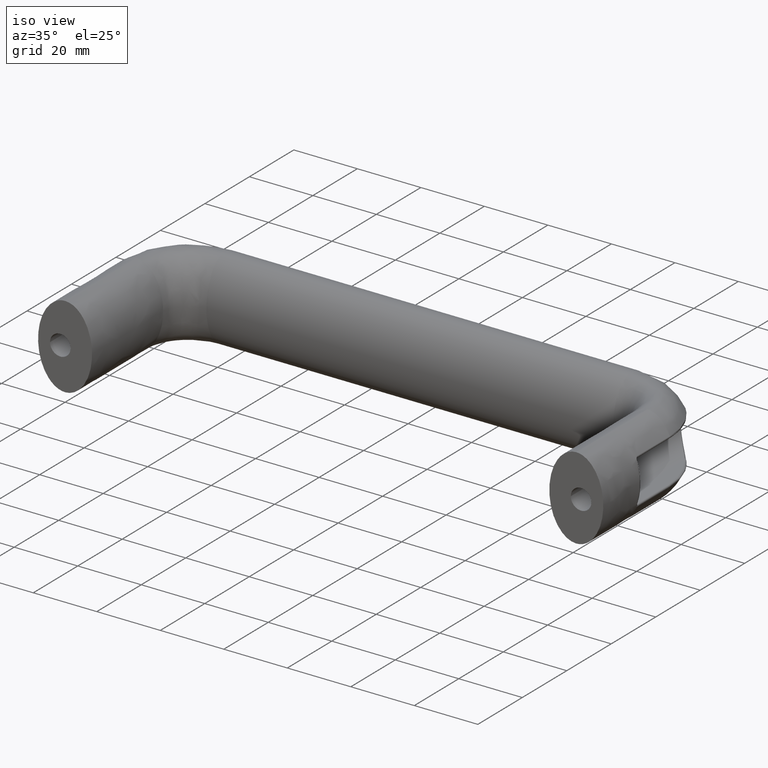
[diagram: clean part render]
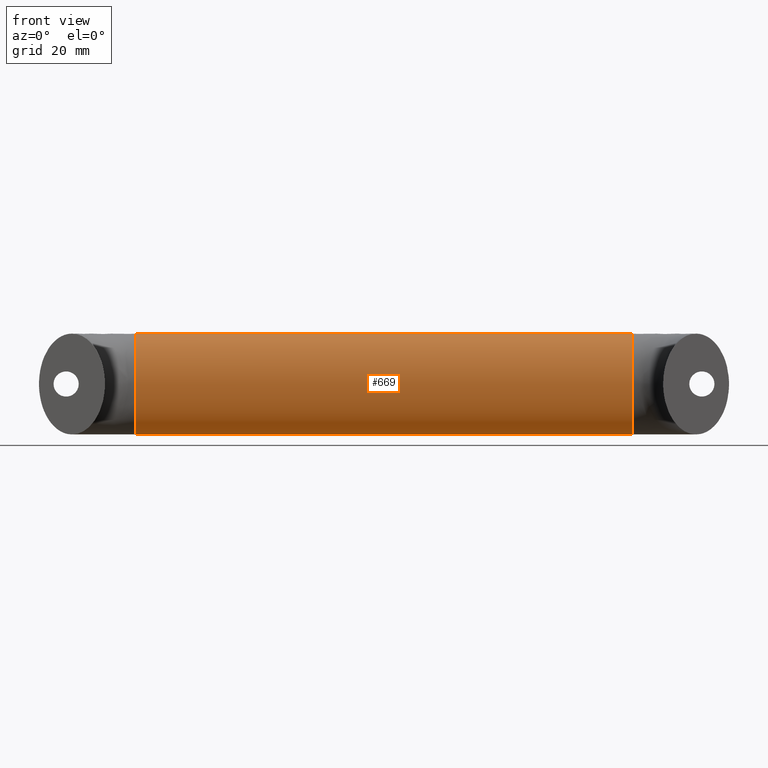
[diagram: tour spotlight — one face highlighted and labeled with its STEP entity id]
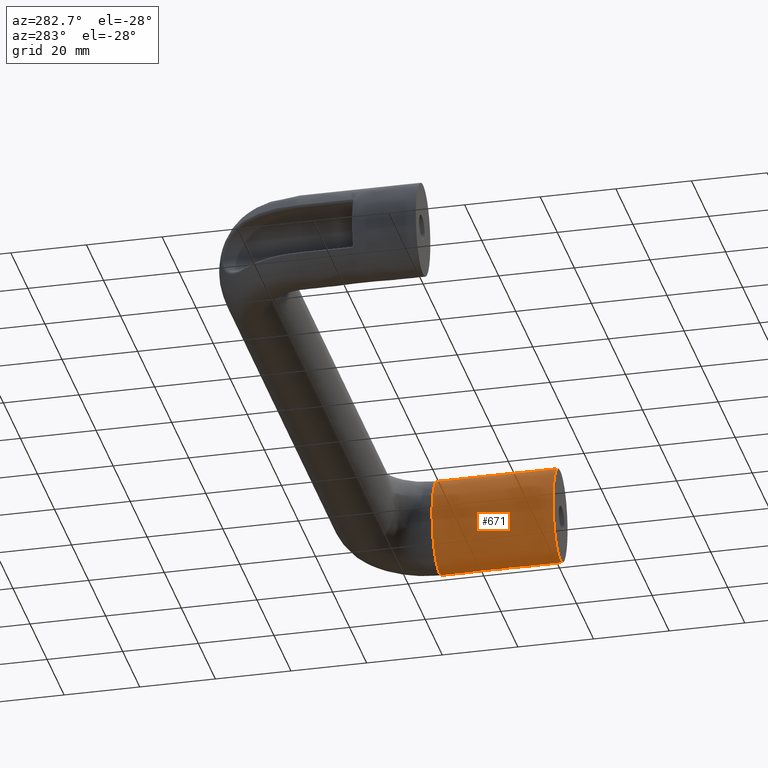
[diagram: tour spotlight — one face highlighted and labeled with its STEP entity id]
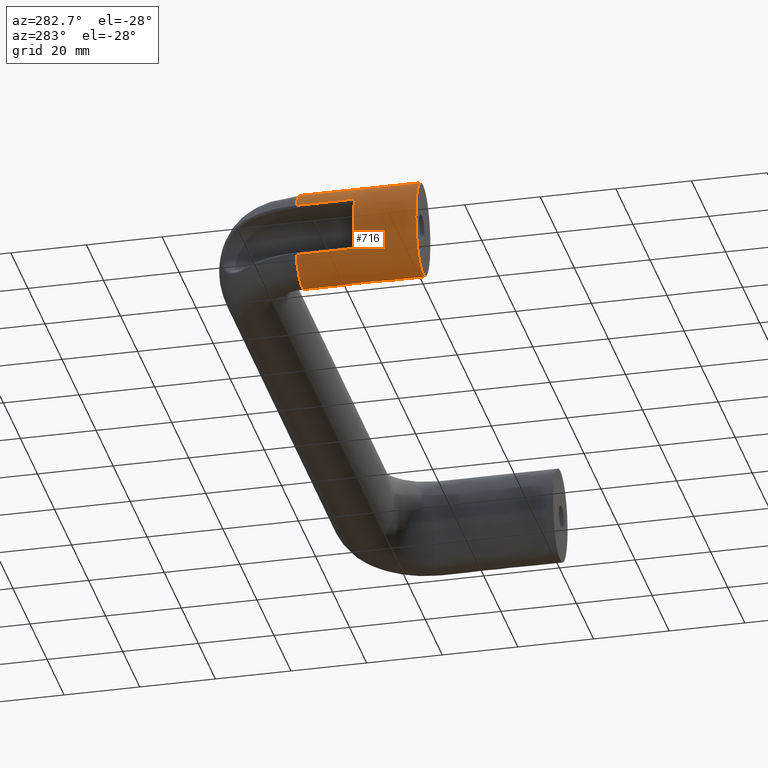
[diagram: tour spotlight — one face highlighted and labeled with its STEP entity id]
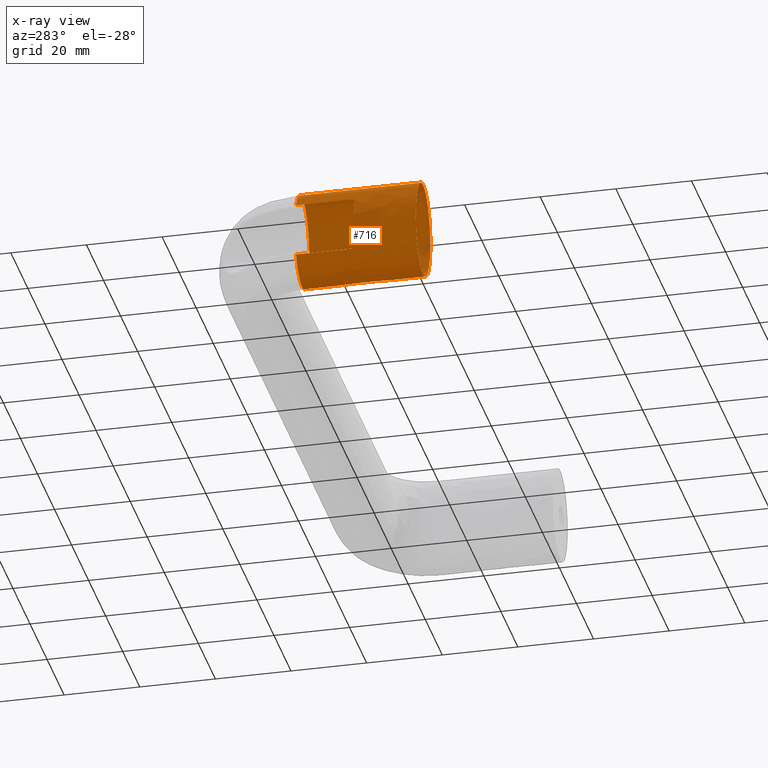
[diagram: x-ray of the same camera — body ghosted, this tour face saturated]
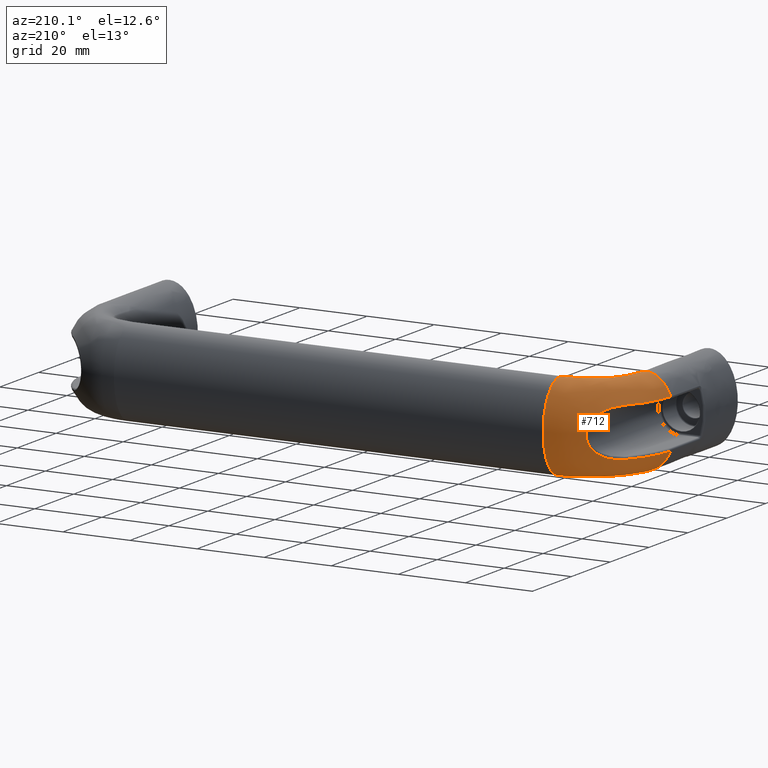
[diagram: tour spotlight — one face highlighted and labeled with its STEP entity id]
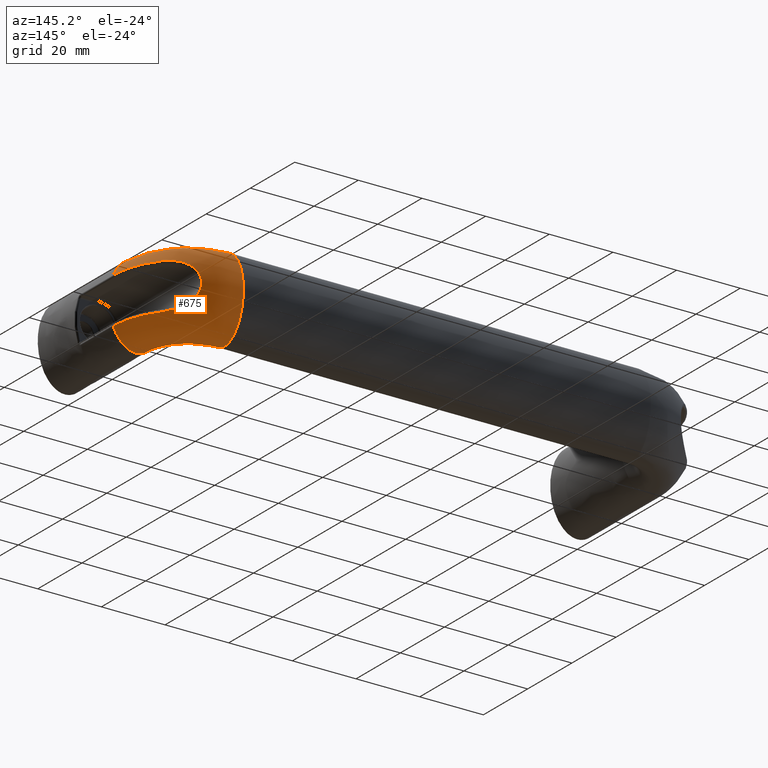
[diagram: tour spotlight — one face highlighted and labeled with its STEP entity id]
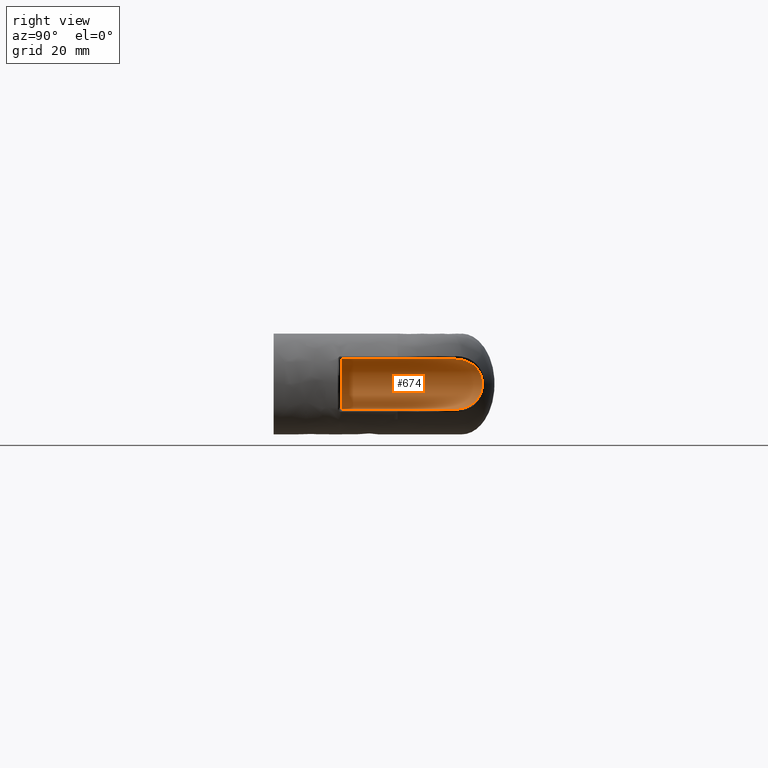
[diagram: tour spotlight — one face highlighted and labeled with its STEP entity id]
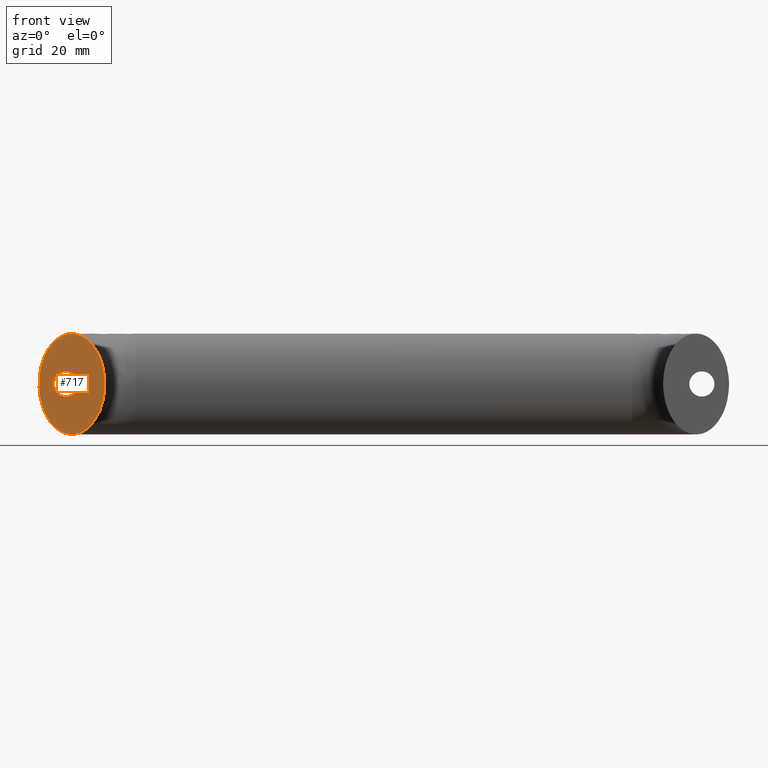
[diagram: tour spotlight — one face highlighted and labeled with its STEP entity id]
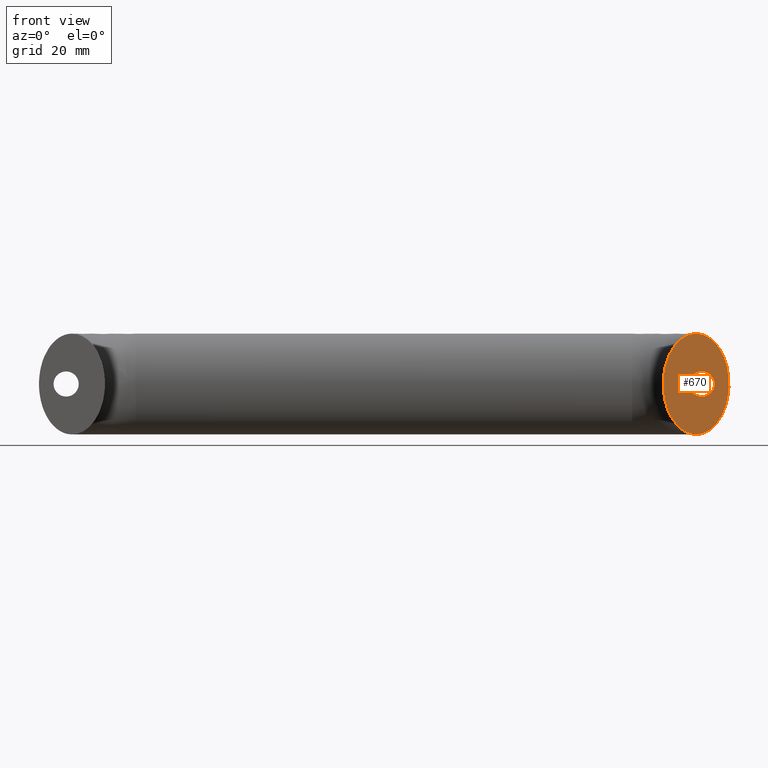
[diagram: tour spotlight — one face highlighted and labeled with its STEP entity id]
A machine part: a face-by-face anatomy tour. The part has 49 B-rep faces; the first image is the clean iso view, then the 8 largest visible faces are spotlighted one at a time (largest first), each with its STEP entity span.

Face 1 — front view, entity #669. In plain terms, the highlighted face is a freeform B-spline surface patch.
Definition (entity closure, byte-faithful):
#162=FACE_OUTER_BOUND('',#211,.T.);
#211=EDGE_LOOP('',(#470,#471,#472,#473));
#276=B_SPLINE_CURVE_WITH_KNOTS('',1,(#1018,#1019),.UNSPECIFIED.,.F.,.F.,
(2,2),(-4.92307692307692,4.92307692307692),.UNSPECIFIED.);
#299=ELLIPSE('',#720,13.,8.5);
#300=ELLIPSE('',#721,13.,8.5);
#311=VERTEX_POINT('',#1015);
#312=VERTEX_POINT('',#1017);
#373=EDGE_CURVE('',#311,#311,#299,.T.);
#374=EDGE_CURVE('',#311,#312,#276,.T.);
#375=EDGE_CURVE('',#312,#312,#300,.T.);
#470=ORIENTED_EDGE('',*,*,#373,.F.);
#471=ORIENTED_EDGE('',*,*,#374,.T.);
#472=ORIENTED_EDGE('',*,*,#375,.T.);
#473=ORIENTED_EDGE('',*,*,#374,.F.);
#664=(
BOUNDED_SURFACE()
B_SPLINE_SURFACE(1,2,((#997,#998,#999,#1000,#1001,#1002,#1003,#1004,#1005),
(#1006,#1007,#1008,#1009,#1010,#1011,#1012,#1013,#1014)),.UNSPECIFIED.,
 .F.,.T.,.F.)
B_SPLINE_SURFACE_WITH_KNOTS((2,2),(3,2,2,2,3),(-4.92307692307692,4.92307692307692),
(-3.14159265358979,-1.5707963267949,0.,1.5707963267949,3.14159265358979),
 .UNSPECIFIED.)
GEOMETRIC_REPRESENTATION_ITEM()
RATIONAL_B_SPLINE_SURFACE(((1.,0.707106781186548,1.,0.707106781186548,1.,
0.707106781186548,1.,0.707106781186548,1.),(1.,0.707106781186548,1.,0.707106781186548,
1.,0.707106781186548,1.,0.707106781186548,1.)))
REPRESENTATION_ITEM('')
SURFACE()
);
#669=ADVANCED_FACE('',(#162),#664,.F.);
#720=AXIS2_PLACEMENT_3D('',#1016,#806,#807);
#721=AXIS2_PLACEMENT_3D('',#1020,#808,#809);
#806=DIRECTION('center_axis',(1.,6.12323399573677E-17,0.));
#807=DIRECTION('ref_axis',(0.,0.,-1.));
#808=DIRECTION('center_axis',(1.,6.12323399573677E-17,0.));
#809=DIRECTION('ref_axis',(0.,0.,-1.));
#997=CARTESIAN_POINT('Ctrl Pts',(16.5,48.5,-13.));
#998=CARTESIAN_POINT('Ctrl Pts',(16.5,57.,-13.));
#999=CARTESIAN_POINT('Ctrl Pts',(16.5,57.,0.));
#1000=CARTESIAN_POINT('Ctrl Pts',(16.5,57.,13.));
#1001=CARTESIAN_POINT('Ctrl Pts',(16.5,48.5,13.));
#1002=CARTESIAN_POINT('Ctrl Pts',(16.5,40.,13.));
#1003=CARTESIAN_POINT('Ctrl Pts',(16.5,40.,0.));
#1004=CARTESIAN_POINT('Ctrl Pts',(16.5,40.,-13.));
#1005=CARTESIAN_POINT('Ctrl Pts',(16.5,48.5,-13.));
#1006=CARTESIAN_POINT('Ctrl Pts',(144.5,48.5,-13.));
#1007=CARTESIAN_POINT('Ctrl Pts',(144.5,57.,-13.));
#1008=CARTESIAN_POINT('Ctrl Pts',(144.5,57.,0.));
#1009=CARTESIAN_POINT('Ctrl Pts',(144.5,57.,13.));
#1010=CARTESIAN_POINT('Ctrl Pts',(144.5,48.5,13.));
#1011=CARTESIAN_POINT('Ctrl Pts',(144.5,40.,13.));
#1012=CARTESIAN_POINT('Ctrl Pts',(144.5,40.,0.));
#1013=CARTESIAN_POINT('Ctrl Pts',(144.5,40.,-13.));
#1014=CARTESIAN_POINT('Ctrl Pts',(144.5,48.5,-13.));
#1015=CARTESIAN_POINT('',(144.5,48.5,-13.));
#1016=CARTESIAN_POINT('Origin',(144.5,48.5,0.));
#1017=CARTESIAN_POINT('',(16.5,48.5,-13.));
#1018=CARTESIAN_POINT('Ctrl Pts',(144.5,48.5,-13.));
#1019=CARTESIAN_POINT('Ctrl Pts',(16.5,48.5,-13.));
#1020=CARTESIAN_POINT('Origin',(16.5,48.5,0.));

Face 2 — auxiliary view, entity #671. In plain terms, the highlighted face is a freeform B-spline surface patch.
Definition (entity closure, byte-faithful):
#52=LINE('',#1045,#74);
#53=LINE('',#1051,#75);
#54=LINE('',#1069,#76);
#74=VECTOR('',#816,32.);
#75=VECTOR('',#821,14.5);
#76=VECTOR('',#824,14.5);
#164=FACE_OUTER_BOUND('',#214,.T.);
#214=EDGE_LOOP('',(#476,#477,#478,#479,#480,#481,#482,#483,#484,#485,#486));
#277=B_SPLINE_CURVE_WITH_KNOTS('',3,(#1053,#1054,#1055,#1056,#1057,#1058),
 .UNSPECIFIED.,.F.,.F.,(4,1,1,4),(-0.162801566641001,-0.116286833315001,
-0.0697720999890006,0.),.UNSPECIFIED.);
#278=B_SPLINE_CURVE_WITH_KNOTS('',3,(#1062,#1063,#1064,#1065,#1066,#1067),
 .UNSPECIFIED.,.F.,.F.,(4,1,1,4),(-0.162803649215568,-0.116288320868263,
-0.0930306566946101,0.),.UNSPECIFIED.);
#301=ELLIPSE('',#723,13.,8.5);
#302=ELLIPSE('',#725,13.,8.5);
#303=ELLIPSE('',#726,13.,8.5);
#304=ELLIPSE('',#727,12.9999999999906,8.4999999999867);
#305=ELLIPSE('',#728,13.,8.5);
#313=VERTEX_POINT('',#1022);
#315=VERTEX_POINT('',#1044);
#316=VERTEX_POINT('',#1046);
#317=VERTEX_POINT('',#1048);
#318=VERTEX_POINT('',#1050);
#319=VERTEX_POINT('',#1052);
#320=VERTEX_POINT('',#1059);
#321=VERTEX_POINT('',#1061);
#322=VERTEX_POINT('',#1068);
#376=EDGE_CURVE('',#313,#313,#301,.T.);
#378=EDGE_CURVE('',#313,#315,#52,.T.);
#379=EDGE_CURVE('',#315,#316,#302,.T.);
#380=EDGE_CURVE('',#316,#317,#303,.T.);
#381=EDGE_CURVE('',#318,#317,#53,.T.);
#382=EDGE_CURVE('',#319,#318,#277,.T.);
#383=EDGE_CURVE('',#320,#319,#304,.T.);
#384=EDGE_CURVE('',#321,#320,#278,.T.);
#385=EDGE_CURVE('',#322,#321,#54,.T.);
#386=EDGE_CURVE('',#322,#315,#305,.T.);
#476=ORIENTED_EDGE('',*,*,#376,.F.);
#477=ORIENTED_EDGE('',*,*,#378,.T.);
#478=ORIENTED_EDGE('',*,*,#379,.T.);
#479=ORIENTED_EDGE('',*,*,#380,.T.);
#480=ORIENTED_EDGE('',*,*,#381,.F.);
#481=ORIENTED_EDGE('',*,*,#382,.F.);
#482=ORIENTED_EDGE('',*,*,#383,.F.);
#483=ORIENTED_EDGE('',*,*,#384,.F.);
#484=ORIENTED_EDGE('',*,*,#385,.F.);
#485=ORIENTED_EDGE('',*,*,#386,.T.);
#486=ORIENTED_EDGE('',*,*,#378,.F.);
#665=(
BOUNDED_SURFACE()
B_SPLINE_SURFACE(2,1,((#1026,#1027),(#1028,#1029),(#1030,#1031),(#1032,
#1033),(#1034,#1035),(#1036,#1037),(#1038,#1039),(#1040,#1041),(#1042,#1043)),
 .UNSPECIFIED.,.T.,.F.,.F.)
B_SPLINE_SURFACE_WITH_KNOTS((3,2,2,2,3),(2,2),(-3.14159265358979,-1.5707963267949,
0.,1.5707963267949,3.14159265358979),(0.,3.84),.UNSPECIFIED.)
GEOMETRIC_REPRESENTATION_ITEM()
RATIONAL_B_SPLINE_SURFACE(((1.,1.),(0.707106781186548,0.707106781186548),
(1.,1.),(0.707106781186548,0.707106781186548),(1.,1.),(0.707106781186548,
0.707106781186548),(1.,1.),(0.707106781186548,0.707106781186548),(1.,1.)))
REPRESENTATION_ITEM('')
SURFACE()
);
#671=ADVANCED_FACE('',(#164),#665,.T.);
#723=AXIS2_PLACEMENT_3D('',#1023,#812,#813);
#725=AXIS2_PLACEMENT_3D('',#1047,#817,#818);
#726=AXIS2_PLACEMENT_3D('',#1049,#819,#820);
#727=AXIS2_PLACEMENT_3D('',#1060,#822,#823);
#728=AXIS2_PLACEMENT_3D('',#1070,#825,#826);
#812=DIRECTION('center_axis',(3.44509284839767E-16,-1.,0.));
#813=DIRECTION('ref_axis',(0.,0.,-1.));
#816=DIRECTION('',(0.,1.,0.));
#817=DIRECTION('center_axis',(3.44509284839767E-16,-1.,0.));
#818=DIRECTION('ref_axis',(0.,0.,-1.));
#819=DIRECTION('center_axis',(3.44509284839767E-16,-1.,0.));
#820=DIRECTION('ref_axis',(0.,0.,-1.));
#821=DIRECTION('',(0.,1.,0.));
#822=DIRECTION('center_axis',(5.01756409945165E-18,1.,3.60103510934781E-16));
#823=DIRECTION('ref_axis',(3.70186359788461E-14,-3.60103510934781E-16,1.));
#824=DIRECTION('',(0.,-1.,0.));
#825=DIRECTION('center_axis',(3.44509284839767E-16,-1.,0.));
#826=DIRECTION('ref_axis',(0.,0.,-1.));
#1022=CARTESIAN_POINT('',(161.,-3.10862446895044E-14,13.));
#1023=CARTESIAN_POINT('Origin',(161.,-2.66453525910038E-14,0.));
#1026=CARTESIAN_POINT('Ctrl Pts',(161.,32.,13.));
#1027=CARTESIAN_POINT('Ctrl Pts',(161.,-6.40000000000004,13.));
#1028=CARTESIAN_POINT('Ctrl Pts',(152.5,32.,13.));
#1029=CARTESIAN_POINT('Ctrl Pts',(152.5,-6.40000000000004,13.));
#1030=CARTESIAN_POINT('Ctrl Pts',(152.5,32.,0.));
#1031=CARTESIAN_POINT('Ctrl Pts',(152.5,-6.40000000000004,0.));
#1032=CARTESIAN_POINT('Ctrl Pts',(152.5,32.,-13.));
#1033=CARTESIAN_POINT('Ctrl Pts',(152.5,-6.40000000000004,-13.));
#1034=CARTESIAN_POINT('Ctrl Pts',(161.,32.,-13.));
#1035=CARTESIAN_POINT('Ctrl Pts',(161.,-6.40000000000004,-13.));
#1036=CARTESIAN_POINT('Ctrl Pts',(169.5,32.,-13.));
#1037=CARTESIAN_POINT('Ctrl Pts',(169.5,-6.40000000000004,-13.));
#1038=CARTESIAN_POINT('Ctrl Pts',(169.5,32.,0.));
#1039=CARTESIAN_POINT('Ctrl Pts',(169.5,-6.40000000000004,0.));
#1040=CARTESIAN_POINT('Ctrl Pts',(169.5,32.,13.));
#1041=CARTESIAN_POINT('Ctrl Pts',(169.5,-6.40000000000004,13.));
#1042=CARTESIAN_POINT('Ctrl Pts',(161.,32.,13.));
#1043=CARTESIAN_POINT('Ctrl Pts',(161.,-6.40000000000004,13.));
#1044=CARTESIAN_POINT('',(161.,32.,13.));
#1045=CARTESIAN_POINT('',(161.,32.,13.));
#1046=CARTESIAN_POINT('',(161.,32.,-13.));
#1047=CARTESIAN_POINT('Origin',(161.,32.,0.));
#1048=CARTESIAN_POINT('',(168.077522929227,32.,-7.19939933334356));
#1049=CARTESIAN_POINT('Origin',(161.,32.,0.));
#1050=CARTESIAN_POINT('',(168.07752292926,17.5,-7.19939933326746));
#1051=CARTESIAN_POINT('',(168.07752292926,32.,-7.19939933326746));
#1052=CARTESIAN_POINT('',(168.483005916871,16.5,-6.1661327420626));
#1053=CARTESIAN_POINT('Ctrl Pts',(168.483005916871,16.5,-6.1661327420626));
#1054=CARTESIAN_POINT('Ctrl Pts',(168.429844379381,16.499999999986,-6.31703981823369));
#1055=CARTESIAN_POINT('Ctrl Pts',(168.319248961639,16.5653335364551,-6.61635088092812));
#1056=CARTESIAN_POINT('Ctrl Pts',(168.143213642756,16.8860158474219,-7.05109375168015));
#1057=CARTESIAN_POINT('Ctrl Pts',(168.077522929227,17.2674263333701,-7.19939933334355));
#1058=CARTESIAN_POINT('Ctrl Pts',(168.077522929227,17.5,-7.19939933334355));
#1059=CARTESIAN_POINT('',(168.483005916981,16.5,6.16613274174812));
#1060=CARTESIAN_POINT('Origin',(161.000000000013,16.5,-3.74145159298678E-13));
#1061=CARTESIAN_POINT('',(168.07752292926,17.5,7.19939933326747));
#1062=CARTESIAN_POINT('Ctrl Pts',(168.077522929227,17.5,7.19939933334357));
#1063=CARTESIAN_POINT('Ctrl Pts',(168.077522929227,17.344948905509,7.19939933334357));
#1064=CARTESIAN_POINT('Ctrl Pts',(168.102737875403,17.1140328546982,7.14149874472068));
#1065=CARTESIAN_POINT('Ctrl Pts',(168.230215107386,16.6666937361246,6.84058939700271));
#1066=CARTESIAN_POINT('Ctrl Pts',(168.376681481913,16.4999999998829,6.46795075493022));
#1067=CARTESIAN_POINT('Ctrl Pts',(168.483005916981,16.5,6.1661327417481));
#1068=CARTESIAN_POINT('',(168.07752292926,32.,7.19939933326746));
#1069=CARTESIAN_POINT('',(168.07752292926,32.,7.19939933326747));
#1070=CARTESIAN_POINT('Origin',(161.,32.,0.));

Face 3 — auxiliary view, entity #716. An x-ray twin of the same camera follows (body ghosted, this face saturated) — the face is partly hidden behind the body. In plain terms, the highlighted face is a freeform B-spline surface patch.
Definition (entity closure, byte-faithful):
#65=LINE('',#1593,#87);
#67=LINE('',#1773,#89);
#73=LINE('',#1868,#95);
#87=VECTOR('',#947,14.5);
#89=VECTOR('',#957,14.5);
#95=VECTOR('',#991,32.);
#209=FACE_OUTER_BOUND('',#273,.T.);
#273=EDGE_LOOP('',(#651,#652,#653,#654,#655,#656,#657,#658,#659,#660,#661));
#290=B_SPLINE_CURVE_WITH_KNOTS('',3,(#1529,#1530,#1531,#1532,#1533,#1534),
 .UNSPECIFIED.,.F.,.F.,(4,1,1,4),(-0.162803649215564,-0.11628832086826,
-0.0697729925209562,0.),.UNSPECIFIED.);
#291=B_SPLINE_CURVE_WITH_KNOTS('',3,(#1574,#1575,#1576,#1577,#1578,#1579),
 .UNSPECIFIED.,.F.,.F.,(4,1,1,4),(-0.162801566641,-0.116286833315,-0.0697720999890003,
-3.18998970628953E-16),.UNSPECIFIED.);
#306=ELLIPSE('',#794,13.0000000000002,8.50000000000023);
#307=ELLIPSE('',#795,13.,8.5);
#308=ELLIPSE('',#796,13.,8.5);
#309=ELLIPSE('',#798,13.,8.5);
#310=ELLIPSE('',#802,13.,8.5);
#355=VERTEX_POINT('',#1526);
#356=VERTEX_POINT('',#1528);
#357=VERTEX_POINT('',#1572);
#358=VERTEX_POINT('',#1573);
#361=VERTEX_POINT('',#1591);
#367=VERTEX_POINT('',#1760);
#370=VERTEX_POINT('',#1838);
#371=VERTEX_POINT('',#1840);
#372=VERTEX_POINT('',#1867);
#436=EDGE_CURVE('',#355,#356,#290,.T.);
#438=EDGE_CURVE('',#357,#358,#291,.T.);
#443=EDGE_CURVE('',#361,#355,#65,.T.);
#454=EDGE_CURVE('',#358,#367,#67,.T.);
#461=EDGE_CURVE('',#356,#357,#306,.T.);
#462=EDGE_CURVE('',#367,#370,#307,.T.);
#463=EDGE_CURVE('',#370,#371,#308,.T.);
#465=EDGE_CURVE('',#371,#361,#309,.T.);
#468=EDGE_CURVE('',#370,#372,#73,.T.);
#469=EDGE_CURVE('',#372,#372,#310,.T.);
#651=ORIENTED_EDGE('',*,*,#443,.F.);
#652=ORIENTED_EDGE('',*,*,#465,.F.);
#653=ORIENTED_EDGE('',*,*,#463,.F.);
#654=ORIENTED_EDGE('',*,*,#468,.T.);
#655=ORIENTED_EDGE('',*,*,#469,.T.);
#656=ORIENTED_EDGE('',*,*,#468,.F.);
#657=ORIENTED_EDGE('',*,*,#462,.F.);
#658=ORIENTED_EDGE('',*,*,#454,.F.);
#659=ORIENTED_EDGE('',*,*,#438,.F.);
#660=ORIENTED_EDGE('',*,*,#461,.F.);
#661=ORIENTED_EDGE('',*,*,#436,.F.);
#668=(
BOUNDED_SURFACE()
B_SPLINE_SURFACE(2,1,((#1849,#1850),(#1851,#1852),(#1853,#1854),(#1855,
#1856),(#1857,#1858),(#1859,#1860),(#1861,#1862),(#1863,#1864),(#1865,#1866)),
 .UNSPECIFIED.,.T.,.F.,.F.)
B_SPLINE_SURFACE_WITH_KNOTS((3,2,2,2,3),(2,2),(-3.14159265358979,-1.5707963267949,
0.,1.5707963267949,3.14159265358979),(0.,3.84),.UNSPECIFIED.)
GEOMETRIC_REPRESENTATION_ITEM()
RATIONAL_B_SPLINE_SURFACE(((1.,1.),(0.707106781186548,0.707106781186548),
(1.,1.),(0.707106781186548,0.707106781186548),(1.,1.),(0.707106781186548,
0.707106781186548),(1.,1.),(0.707106781186548,0.707106781186548),(1.,1.)))
REPRESENTATION_ITEM('')
SURFACE()
);
#716=ADVANCED_FACE('',(#209),#668,.T.);
#794=AXIS2_PLACEMENT_3D('',#1810,#973,#974);
#795=AXIS2_PLACEMENT_3D('',#1839,#975,#976);
#796=AXIS2_PLACEMENT_3D('',#1841,#977,#978);
#798=AXIS2_PLACEMENT_3D('',#1843,#981,#982);
#802=AXIS2_PLACEMENT_3D('',#1869,#992,#993);
#947=DIRECTION('',(1.73472347597681E-16,-1.,0.));
#957=DIRECTION('',(-1.73472347597681E-16,1.,0.));
#973=DIRECTION('center_axis',(-1.09416892913838E-15,1.,-1.80051755457583E-16));
#974=DIRECTION('ref_axis',(8.48514185012431E-15,1.80051755457592E-16,1.));
#975=DIRECTION('center_axis',(0.,1.,0.));
#976=DIRECTION('ref_axis',(0.,0.,-1.));
#977=DIRECTION('center_axis',(0.,1.,0.));
#978=DIRECTION('ref_axis',(0.,0.,-1.));
#981=DIRECTION('center_axis',(0.,1.,0.));
#982=DIRECTION('ref_axis',(0.,0.,-1.));
#991=DIRECTION('',(1.73472347597681E-16,-1.,0.));
#992=DIRECTION('center_axis',(0.,1.,0.));
#993=DIRECTION('ref_axis',(0.,0.,-1.));
#1526=CARTESIAN_POINT('',(-7.07752292926031,17.5,-7.19939933326745));
#1528=CARTESIAN_POINT('',(-7.48300591698149,16.5,-6.16613274174809));
#1529=CARTESIAN_POINT('Ctrl Pts',(-7.07752292922721,17.5,-7.19939933334355));
#1530=CARTESIAN_POINT('Ctrl Pts',(-7.07752292922721,17.344948905509,-7.19939933334355));
#1531=CARTESIAN_POINT('Ctrl Pts',(-7.11148146669327,17.0359268522297,-7.12201041401197));
#1532=CARTESIAN_POINT('Ctrl Pts',(-7.26092569259304,16.6224701056188,-6.76616779655953));
#1533=CARTESIAN_POINT('Ctrl Pts',(-7.40326259068004,16.4999999999122,-6.39249625163465));
#1534=CARTESIAN_POINT('Ctrl Pts',(-7.48300591698149,16.5,-6.1661327417481));
#1572=CARTESIAN_POINT('',(-7.48300591687069,16.5,6.16613274206263));
#1573=CARTESIAN_POINT('',(-7.0775229292603,17.5,7.19939933326747));
#1574=CARTESIAN_POINT('Ctrl Pts',(-7.48300591687069,16.5,6.16613274206263));
#1575=CARTESIAN_POINT('Ctrl Pts',(-7.42984437938115,16.499999999986,6.31703981823367));
#1576=CARTESIAN_POINT('Ctrl Pts',(-7.31924589596752,16.5653278864208,6.61635681753747));
#1577=CARTESIAN_POINT('Ctrl Pts',(-7.14320757920169,16.8860053352927,7.05110482725217));
#1578=CARTESIAN_POINT('Ctrl Pts',(-7.0775229292272,17.2674263333701,7.19939933334357));
#1579=CARTESIAN_POINT('Ctrl Pts',(-7.0775229292272,17.5,7.19939933334357));
#1591=CARTESIAN_POINT('',(-7.07752292926031,32.,-7.19939933326745));
#1593=CARTESIAN_POINT('',(-7.07752292926031,-1.2277545177152E-15,-7.19939933326745));
#1760=CARTESIAN_POINT('',(-7.0775229292272,32.,7.19939933334357));
#1773=CARTESIAN_POINT('',(-7.0775229292603,-1.2277545177152E-15,7.19939933326747));
#1810=CARTESIAN_POINT('Origin',(2.23154827949656E-13,16.5,8.88178419700125E-14));
#1838=CARTESIAN_POINT('',(-4.51016534385053E-15,32.,13.));
#1839=CARTESIAN_POINT('Origin',(-5.55111512312578E-15,32.,0.));
#1840=CARTESIAN_POINT('',(-5.55111512312578E-15,32.,-13.));
#1841=CARTESIAN_POINT('Origin',(-5.55111512312578E-15,32.,0.));
#1843=CARTESIAN_POINT('Origin',(-5.55111512312578E-15,32.,0.));
#1849=CARTESIAN_POINT('Ctrl Pts',(2.5578757073893E-31,-1.47451495458029E-15,
13.));
#1850=CARTESIAN_POINT('Ctrl Pts',(-6.66133814775094E-15,38.4,13.));
#1851=CARTESIAN_POINT('Ctrl Pts',(8.5,-4.93038065763132E-31,13.));
#1852=CARTESIAN_POINT('Ctrl Pts',(8.49999999999999,38.4,13.));
#1853=CARTESIAN_POINT('Ctrl Pts',(8.5,0.,0.));
#1854=CARTESIAN_POINT('Ctrl Pts',(8.49999999999999,38.4,0.));
#1855=CARTESIAN_POINT('Ctrl Pts',(8.5,-3.69778549322349E-31,-13.));
#1856=CARTESIAN_POINT('Ctrl Pts',(8.49999999999999,38.4,-13.));
#1857=CARTESIAN_POINT('Ctrl Pts',(2.5578757073893E-31,-1.47451495458029E-15,
-13.));
#1858=CARTESIAN_POINT('Ctrl Pts',(-6.66133814775094E-15,38.4,-13.));
#1859=CARTESIAN_POINT('Ctrl Pts',(-8.5,-2.94902990916057E-15,-13.));
#1860=CARTESIAN_POINT('Ctrl Pts',(-8.50000000000001,38.4,-13.));
#1861=CARTESIAN_POINT('Ctrl Pts',(-8.5,-2.94902990916057E-15,0.));
#1862=CARTESIAN_POINT('Ctrl Pts',(-8.50000000000001,38.4,0.));
#1863=CARTESIAN_POINT('Ctrl Pts',(-8.5,-2.94902990916057E-15,13.));
#1864=CARTESIAN_POINT('Ctrl Pts',(-8.50000000000001,38.4,13.));
#1865=CARTESIAN_POINT('Ctrl Pts',(2.5578757073893E-31,-1.47451495458029E-15,
13.));
#1866=CARTESIAN_POINT('Ctrl Pts',(-6.66133814775094E-15,38.4,13.));
#1867=CARTESIAN_POINT('',(1.04094977927525E-15,-1.47451495458029E-15,13.));
#1868=CARTESIAN_POINT('',(1.04094977927525E-15,1.80576001942165E-31,13.));
#1869=CARTESIAN_POINT('Origin',(0.,0.,0.));

Face 4 — auxiliary view, entity #712. In plain terms, the highlighted face is a freeform B-spline surface patch.
Definition (entity closure, byte-faithful):
#151=CIRCLE('',#797,16.5);
#205=FACE_OUTER_BOUND('',#269,.T.);
#269=EDGE_LOOP('',(#630,#631,#632,#633,#634,#635,#636,#637,#638));
#293=B_SPLINE_CURVE_WITH_KNOTS('',3,(#1628,#1629,#1630,#1631,#1632),
 .UNSPECIFIED.,.F.,.F.,(4,1,4),(-1.56834099361023,-0.896194853491561,-4.12990725370554E-16),
 .UNSPECIFIED.);
#295=B_SPLINE_CURVE_WITH_KNOTS('',3,(#1707,#1708,#1709,#1710,#1711,#1712,
#1713,#1714,#1715,#1716,#1717),.UNSPECIFIED.,.F.,.F.,(4,1,1,1,1,1,1,1,4),
(-2.73713341995059,-2.34611435996047,-1.95509529997035,-1.56407623998023,
-1.36856670998517,-1.17305717999011,-0.782038119999993,-0.391019060009875,
-1.97566462335093E-11),.UNSPECIFIED.);
#297=B_SPLINE_CURVE_WITH_KNOTS('',3,(#1762,#1763,#1764,#1765,#1766),
 .UNSPECIFIED.,.F.,.F.,(4,1,4),(-1.56834099359296,-0.672146140111266,0.),
 .UNSPECIFIED.);
#300=ELLIPSE('',#721,13.,8.5);
#307=ELLIPSE('',#795,13.,8.5);
#308=ELLIPSE('',#796,13.,8.5);
#309=ELLIPSE('',#798,13.,8.5);
#312=VERTEX_POINT('',#1017);
#361=VERTEX_POINT('',#1591);
#363=VERTEX_POINT('',#1626);
#365=VERTEX_POINT('',#1705);
#367=VERTEX_POINT('',#1760);
#370=VERTEX_POINT('',#1838);
#371=VERTEX_POINT('',#1840);
#375=EDGE_CURVE('',#312,#312,#300,.T.);
#446=EDGE_CURVE('',#363,#361,#293,.T.);
#449=EDGE_CURVE('',#365,#363,#295,.T.);
#452=EDGE_CURVE('',#367,#365,#297,.T.);
#462=EDGE_CURVE('',#367,#370,#307,.T.);
#463=EDGE_CURVE('',#370,#371,#308,.T.);
#464=EDGE_CURVE('',#371,#312,#151,.T.);
#465=EDGE_CURVE('',#371,#361,#309,.T.);
#630=ORIENTED_EDGE('',*,*,#446,.F.);
#631=ORIENTED_EDGE('',*,*,#449,.F.);
#632=ORIENTED_EDGE('',*,*,#452,.F.);
#633=ORIENTED_EDGE('',*,*,#462,.T.);
#634=ORIENTED_EDGE('',*,*,#463,.T.);
#635=ORIENTED_EDGE('',*,*,#464,.T.);
#636=ORIENTED_EDGE('',*,*,#375,.F.);
#637=ORIENTED_EDGE('',*,*,#464,.F.);
#638=ORIENTED_EDGE('',*,*,#465,.T.);
#667=(
BOUNDED_SURFACE()
B_SPLINE_SURFACE(2,2,((#1811,#1812,#1813),(#1814,#1815,#1816),(#1817,#1818,
#1819),(#1820,#1821,#1822),(#1823,#1824,#1825),(#1826,#1827,#1828),(#1829,
#1830,#1831),(#1832,#1833,#1834),(#1835,#1836,#1837)),.UNSPECIFIED.,.T.,
 .F.,.F.)
B_SPLINE_SURFACE_WITH_KNOTS((3,2,2,2,3),(3,3),(0.,1.5707963267949,3.14159265358979,
4.71238898038469,6.28318530717959),(-4.07049166293506E-5,1.5707963267949),
 .UNSPECIFIED.)
GEOMETRIC_REPRESENTATION_ITEM()
RATIONAL_B_SPLINE_SURFACE(((1.00001518020229,0.707099191282084,1.),(0.707117515210528,
0.499994633127085,0.707106781186548),(1.00001518020229,0.707099191282084,
1.),(0.707117515210528,0.499994633127085,0.707106781186548),(1.00001518020229,
0.707099191282084,1.),(0.707117515210528,0.499994633127085,0.707106781186548),
(1.00001518020229,0.707099191282084,1.),(0.707117515210527,0.499994633127085,
0.707106781186547),(1.00001518020229,0.707099191282084,1.)))
REPRESENTATION_ITEM('')
SURFACE()
);
#712=ADVANCED_FACE('',(#205),#667,.T.);
#721=AXIS2_PLACEMENT_3D('',#1020,#808,#809);
#795=AXIS2_PLACEMENT_3D('',#1839,#975,#976);
#796=AXIS2_PLACEMENT_3D('',#1841,#977,#978);
#797=AXIS2_PLACEMENT_3D('',#1842,#979,#980);
#798=AXIS2_PLACEMENT_3D('',#1843,#981,#982);
#808=DIRECTION('center_axis',(1.,6.12323399573677E-17,0.));
#809=DIRECTION('ref_axis',(0.,0.,-1.));
#975=DIRECTION('center_axis',(0.,1.,0.));
#976=DIRECTION('ref_axis',(0.,0.,-1.));
#977=DIRECTION('center_axis',(0.,1.,0.));
#978=DIRECTION('ref_axis',(0.,0.,-1.));
#979=DIRECTION('center_axis',(0.,0.,-1.));
#980=DIRECTION('ref_axis',(-1.,5.38289951333409E-16,0.));
#981=DIRECTION('center_axis',(0.,1.,0.));
#982=DIRECTION('ref_axis',(0.,0.,-1.));
#1017=CARTESIAN_POINT('',(16.5,48.5,-13.));
#1020=CARTESIAN_POINT('Origin',(16.5,48.5,0.));
#1591=CARTESIAN_POINT('',(-7.07752292926031,32.,-7.19939933326745));
#1626=CARTESIAN_POINT('',(-1.85699404194168,46.7959574621703,-7.19939933334355));
#1628=CARTESIAN_POINT('Ctrl Pts',(-1.85699404194168,46.7959574621703,-7.19939933334355));
#1629=CARTESIAN_POINT('Ctrl Pts',(-3.29088595139481,45.0169617259418,-7.19939933334355));
#1630=CARTESIAN_POINT('Ctrl Pts',(-6.03049955672403,40.3763716474478,-7.19939933334355));
#1631=CARTESIAN_POINT('Ctrl Pts',(-7.07752292922721,35.0465636269999,-7.19939933334355));
#1632=CARTESIAN_POINT('Ctrl Pts',(-7.07752292922721,32.,-7.19939933334355));
#1705=CARTESIAN_POINT('',(-1.85699404194166,46.7959574621703,7.19939933334357));
#1707=CARTESIAN_POINT('Ctrl Pts',(-1.85699404194166,46.7959574621703,7.19939933334358));
#1708=CARTESIAN_POINT('Ctrl Pts',(-1.02283159853651,47.8308830519828,7.19939933336523));
#1709=CARTESIAN_POINT('Ctrl Pts',(0.721186672741358,49.8442705732997,6.89855840236799));
#1710=CARTESIAN_POINT('Ctrl Pts',(3.31618244276738,52.5234234058596,5.31479461696029));
#1711=CARTESIAN_POINT('Ctrl Pts',(4.98829907416547,54.0794383032451,2.67652168177669));
#1712=CARTESIAN_POINT('Ctrl Pts',(5.37165912875861,54.425190304732,-0.0013521075112415));
#1713=CARTESIAN_POINT('Ctrl Pts',(4.98638590665762,54.0781969877779,-2.6844114088746));
#1714=CARTESIAN_POINT('Ctrl Pts',(3.31777610234117,52.524355912538,-5.30732459273081));
#1715=CARTESIAN_POINT('Ctrl Pts',(0.720759376446738,49.8438468703973,-6.89977753746889));
#1716=CARTESIAN_POINT('Ctrl Pts',(-1.02283159852041,47.8308830520019,-7.19939933336333));
#1717=CARTESIAN_POINT('Ctrl Pts',(-1.8569940419258,46.79595746219,-7.19939933334356));
#1760=CARTESIAN_POINT('',(-7.0775229292272,32.,7.19939933334357));
#1762=CARTESIAN_POINT('Ctrl Pts',(-7.0775229292272,32.,7.19939933334357));
#1763=CARTESIAN_POINT('Ctrl Pts',(-7.0775229292272,35.0465636269664,7.19939933334357));
#1764=CARTESIAN_POINT('Ctrl Pts',(-6.03049955674738,40.3763716473556,7.19939933334358));
#1765=CARTESIAN_POINT('Ctrl Pts',(-3.2908859514763,45.0169617258134,7.19939933334357));
#1766=CARTESIAN_POINT('Ctrl Pts',(-1.85699404205224,46.7959574620331,7.19939933334357));
#1811=CARTESIAN_POINT('Ctrl Pts',(1.10797806491723E-8,31.9993953241299,
-13.));
#1812=CARTESIAN_POINT('Ctrl Pts',(-0.000604686950269262,48.5,-13.));
#1813=CARTESIAN_POINT('Ctrl Pts',(16.5,48.5,-13.));
#1814=CARTESIAN_POINT('Ctrl Pts',(-8.49999998321246,31.9990838244393,-13.));
#1815=CARTESIAN_POINT('Ctrl Pts',(-8.5009161923489,57.,-13.));
#1816=CARTESIAN_POINT('Ctrl Pts',(16.5,57.,-13.));
#1817=CARTESIAN_POINT('Ctrl Pts',(-8.49999998321246,31.9990838244393,-7.9602041944578E-16));
#1818=CARTESIAN_POINT('Ctrl Pts',(-8.5009161923489,57.,-7.9602041944578E-16));
#1819=CARTESIAN_POINT('Ctrl Pts',(16.5,57.,-7.9602041944578E-16));
#1820=CARTESIAN_POINT('Ctrl Pts',(-8.49999998321246,31.9990838244393,13.));
#1821=CARTESIAN_POINT('Ctrl Pts',(-8.5009161923489,57.,13.));
#1822=CARTESIAN_POINT('Ctrl Pts',(16.5,57.,13.));
#1823=CARTESIAN_POINT('Ctrl Pts',(1.10797784287263E-8,31.9993953241299,
13.));
#1824=CARTESIAN_POINT('Ctrl Pts',(-0.000604686950271483,48.5,13.));
#1825=CARTESIAN_POINT('Ctrl Pts',(16.5,48.5,13.));
#1826=CARTESIAN_POINT('Ctrl Pts',(8.50000000537201,31.9997068238206,13.));
#1827=CARTESIAN_POINT('Ctrl Pts',(8.49970681844836,40.,13.));
#1828=CARTESIAN_POINT('Ctrl Pts',(16.5,40.,13.));
#1829=CARTESIAN_POINT('Ctrl Pts',(8.50000000537201,31.9997068238206,2.38806125833734E-15));
#1830=CARTESIAN_POINT('Ctrl Pts',(8.49970681844836,40.,2.38806125833734E-15));
#1831=CARTESIAN_POINT('Ctrl Pts',(16.5,40.,2.38806125833734E-15));
#1832=CARTESIAN_POINT('Ctrl Pts',(8.50000000537202,31.9997068238206,-13.));
#1833=CARTESIAN_POINT('Ctrl Pts',(8.49970681844836,40.,-13.));
#1834=CARTESIAN_POINT('Ctrl Pts',(16.5,40.,-13.));
#1835=CARTESIAN_POINT('Ctrl Pts',(1.10797806491723E-8,31.9993953241299,
-13.));
#1836=CARTESIAN_POINT('Ctrl Pts',(-0.000604686950269262,48.5,-13.));
#1837=CARTESIAN_POINT('Ctrl Pts',(16.5,48.5,-13.));
#1838=CARTESIAN_POINT('',(-4.51016534385053E-15,32.,13.));
#1839=CARTESIAN_POINT('Origin',(-5.55111512312578E-15,32.,0.));
#1840=CARTESIAN_POINT('',(-5.55111512312578E-15,32.,-13.));
#1841=CARTESIAN_POINT('Origin',(-5.55111512312578E-15,32.,0.));
#1842=CARTESIAN_POINT('Origin',(16.5,32.,-13.));
#1843=CARTESIAN_POINT('Origin',(-5.55111512312578E-15,32.,0.));

Face 5 — auxiliary view, entity #675. In plain terms, the highlighted face is a freeform B-spline surface patch.
Definition (entity closure, byte-faithful):
#114=CIRCLE('',#733,16.4999999999999);
#168=FACE_OUTER_BOUND('',#218,.T.);
#218=EDGE_LOOP('',(#499,#500,#501,#502,#503,#504,#505,#506,#507));
#282=B_SPLINE_CURVE_WITH_KNOTS('',3,(#1139,#1140,#1141,#1142,#1143),
 .UNSPECIFIED.,.F.,.F.,(4,1,4),(-1.56834099361023,-0.67214614011867,0.),
 .UNSPECIFIED.);
#283=B_SPLINE_CURVE_WITH_KNOTS('',3,(#1145,#1146,#1147,#1148,#1149,#1150,
#1151,#1152,#1153,#1154,#1155,#1156),.UNSPECIFIED.,.F.,.F.,(4,1,1,1,1,1,
1,1,1,4),(-2.73713341995059,-2.34611435996047,-1.95509529997035,-1.56407623998023,
-1.36856670998517,-1.17305717999011,-0.977547649995053,-0.782038119999993,
-0.391019060009874,-1.97552527568218E-11),.UNSPECIFIED.);
#284=B_SPLINE_CURVE_WITH_KNOTS('',3,(#1157,#1158,#1159,#1160,#1161),
 .UNSPECIFIED.,.F.,.F.,(4,1,4),(-1.56834099359296,-0.67214614011127,0.),
 .UNSPECIFIED.);
#299=ELLIPSE('',#720,13.,8.5);
#302=ELLIPSE('',#725,13.,8.5);
#303=ELLIPSE('',#726,13.,8.5);
#305=ELLIPSE('',#728,13.,8.5);
#311=VERTEX_POINT('',#1015);
#315=VERTEX_POINT('',#1044);
#316=VERTEX_POINT('',#1046);
#317=VERTEX_POINT('',#1048);
#322=VERTEX_POINT('',#1068);
#331=VERTEX_POINT('',#1138);
#332=VERTEX_POINT('',#1144);
#373=EDGE_CURVE('',#311,#311,#299,.T.);
#379=EDGE_CURVE('',#315,#316,#302,.T.);
#380=EDGE_CURVE('',#316,#317,#303,.T.);
#386=EDGE_CURVE('',#322,#315,#305,.T.);
#397=EDGE_CURVE('',#331,#322,#282,.T.);
#398=EDGE_CURVE('',#332,#331,#283,.T.);
#399=EDGE_CURVE('',#317,#332,#284,.T.);
#400=EDGE_CURVE('',#311,#316,#114,.T.);
#499=ORIENTED_EDGE('',*,*,#397,.F.);
#500=ORIENTED_EDGE('',*,*,#398,.F.);
#501=ORIENTED_EDGE('',*,*,#399,.F.);
#502=ORIENTED_EDGE('',*,*,#380,.F.);
#503=ORIENTED_EDGE('',*,*,#400,.F.);
#504=ORIENTED_EDGE('',*,*,#373,.T.);
#505=ORIENTED_EDGE('',*,*,#400,.T.);
#506=ORIENTED_EDGE('',*,*,#379,.F.);
#507=ORIENTED_EDGE('',*,*,#386,.F.);
#666=(
BOUNDED_SURFACE()
B_SPLINE_SURFACE(2,2,((#1111,#1112,#1113),(#1114,#1115,#1116),(#1117,#1118,
#1119),(#1120,#1121,#1122),(#1123,#1124,#1125),(#1126,#1127,#1128),(#1129,
#1130,#1131),(#1132,#1133,#1134),(#1135,#1136,#1137)),.UNSPECIFIED.,.T.,
 .F.,.F.)
B_SPLINE_SURFACE_WITH_KNOTS((3,2,2,2,3),(3,3),(0.,1.5707963267949,3.14159265358979,
4.71238898038469,6.28318530717959),(0.,1.57083541986184),.UNSPECIFIED.)
GEOMETRIC_REPRESENTATION_ITEM()
RATIONAL_B_SPLINE_SURFACE(((1.,0.707099491830179,1.00001457907556),(0.707106781186545,
0.499994845646679,0.70711709014974),(1.,0.707099491830179,1.00001457907556),
(0.707106781186545,0.49999484564668,0.70711709014974),(1.,0.707099491830179,
1.00001457907556),(0.707106781186545,0.499994845646679,0.70711709014974),
(1.,0.707099491830179,1.00001457907556),(0.707106781186545,0.499994845646679,
0.70711709014974),(1.,0.707099491830179,1.00001457907556)))
REPRESENTATION_ITEM('')
SURFACE()
);
#675=ADVANCED_FACE('',(#168),#666,.T.);
#720=AXIS2_PLACEMENT_3D('',#1016,#806,#807);
#725=AXIS2_PLACEMENT_3D('',#1047,#817,#818);
#726=AXIS2_PLACEMENT_3D('',#1049,#819,#820);
#728=AXIS2_PLACEMENT_3D('',#1070,#825,#826);
#733=AXIS2_PLACEMENT_3D('',#1162,#841,#842);
#806=DIRECTION('center_axis',(1.,6.12323399573677E-17,0.));
#807=DIRECTION('ref_axis',(0.,0.,-1.));
#817=DIRECTION('center_axis',(3.44509284839767E-16,-1.,0.));
#818=DIRECTION('ref_axis',(0.,0.,-1.));
#819=DIRECTION('center_axis',(3.44509284839767E-16,-1.,0.));
#820=DIRECTION('ref_axis',(0.,0.,-1.));
#825=DIRECTION('center_axis',(3.44509284839767E-16,-1.,0.));
#826=DIRECTION('ref_axis',(0.,0.,-1.));
#841=DIRECTION('center_axis',(0.,0.,-1.));
#842=DIRECTION('ref_axis',(-1.07657990266682E-15,1.,0.));
#1015=CARTESIAN_POINT('',(144.5,48.5,-13.));
#1016=CARTESIAN_POINT('Origin',(144.5,48.5,0.));
#1044=CARTESIAN_POINT('',(161.,32.,13.));
#1046=CARTESIAN_POINT('',(161.,32.,-13.));
#1047=CARTESIAN_POINT('Origin',(161.,32.,0.));
#1048=CARTESIAN_POINT('',(168.077522929227,32.,-7.19939933334356));
#1049=CARTESIAN_POINT('Origin',(161.,32.,0.));
#1068=CARTESIAN_POINT('',(168.07752292926,32.,7.19939933326746));
#1070=CARTESIAN_POINT('Origin',(161.,32.,0.));
#1111=CARTESIAN_POINT('Ctrl Pts',(144.5,48.5,-13.));
#1112=CARTESIAN_POINT('Ctrl Pts',(161.000580742066,48.5,-13.));
#1113=CARTESIAN_POINT('Ctrl Pts',(160.99999998978,31.9994192681541,-13.));
#1114=CARTESIAN_POINT('Ctrl Pts',(144.5,57.,-13.));
#1115=CARTESIAN_POINT('Ctrl Pts',(169.500879912221,57.,-13.));
#1116=CARTESIAN_POINT('Ctrl Pts',(169.499999984516,31.9991201032638,-13.));
#1117=CARTESIAN_POINT('Ctrl Pts',(144.5,57.,-7.9602041944578E-16));
#1118=CARTESIAN_POINT('Ctrl Pts',(169.500879912221,57.,-7.9602041944578E-16));
#1119=CARTESIAN_POINT('Ctrl Pts',(169.499999984516,31.9991201032638,-7.9602041944578E-16));
#1120=CARTESIAN_POINT('Ctrl Pts',(144.5,57.,13.));
#1121=CARTESIAN_POINT('Ctrl Pts',(169.500879912221,57.,13.));
#1122=CARTESIAN_POINT('Ctrl Pts',(169.499999984516,31.9991201032638,13.));
#1123=CARTESIAN_POINT('Ctrl Pts',(144.5,48.5,13.));
#1124=CARTESIAN_POINT('Ctrl Pts',(161.000580742066,48.5,13.));
#1125=CARTESIAN_POINT('Ctrl Pts',(160.99999998978,31.9994192681541,13.));
#1126=CARTESIAN_POINT('Ctrl Pts',(144.5,40.,13.));
#1127=CARTESIAN_POINT('Ctrl Pts',(152.500281571911,40.,13.));
#1128=CARTESIAN_POINT('Ctrl Pts',(152.499999995045,31.9997184330444,13.));
#1129=CARTESIAN_POINT('Ctrl Pts',(144.5,40.,2.38806125833734E-15));
#1130=CARTESIAN_POINT('Ctrl Pts',(152.500281571911,40.,2.38806125833734E-15));
#1131=CARTESIAN_POINT('Ctrl Pts',(152.499999995045,31.9997184330444,2.38806125833734E-15));
#1132=CARTESIAN_POINT('Ctrl Pts',(144.5,40.,-13.));
#1133=CARTESIAN_POINT('Ctrl Pts',(152.500281571911,40.,-13.));
#1134=CARTESIAN_POINT('Ctrl Pts',(152.499999995045,31.9997184330444,-13.));
#1135=CARTESIAN_POINT('Ctrl Pts',(144.5,48.5,-13.));
#1136=CARTESIAN_POINT('Ctrl Pts',(161.000580742066,48.5,-13.));
#1137=CARTESIAN_POINT('Ctrl Pts',(160.99999998978,31.9994192681541,-13.));
#1138=CARTESIAN_POINT('',(162.856994041942,46.7959574621703,7.19939933334357));
#1139=CARTESIAN_POINT('Ctrl Pts',(162.856994041942,46.7959574621703,7.19939933334357));
#1140=CARTESIAN_POINT('Ctrl Pts',(164.768849921213,44.4239631471989,7.19939933334357));
#1141=CARTESIAN_POINT('Ctrl Pts',(167.298022012644,39.6171256686756,7.19939933334357));
#1142=CARTESIAN_POINT('Ctrl Pts',(168.077522929227,34.28492272025,7.19939933334357));
#1143=CARTESIAN_POINT('Ctrl Pts',(168.077522929227,32.,7.19939933334357));
#1144=CARTESIAN_POINT('',(162.856994041942,46.7959574621704,-7.19939933334355));
#1145=CARTESIAN_POINT('Ctrl Pts',(162.856994041942,46.7959574621704,-7.19939933334356));
#1146=CARTESIAN_POINT('Ctrl Pts',(162.022831598536,47.8308830519828,-7.19939933336521));
#1147=CARTESIAN_POINT('Ctrl Pts',(160.278867260084,49.8442772154859,-6.89934114226192));
#1148=CARTESIAN_POINT('Ctrl Pts',(157.684277183602,52.5231372788198,-5.3133622940898));
#1149=CARTESIAN_POINT('Ctrl Pts',(156.011741597593,54.079326923476,-2.67858414322985));
#1150=CARTESIAN_POINT('Ctrl Pts',(155.628940922891,54.4248162762426,0.0042304855390349));
#1151=CARTESIAN_POINT('Ctrl Pts',(155.916910997751,54.1649822139067,2.00396543256918));
#1152=CARTESIAN_POINT('Ctrl Pts',(156.682678603028,53.455823537356,3.74639132771241));
#1153=CARTESIAN_POINT('Ctrl Pts',(158.114483788986,52.077913825203,5.56762849098985));
#1154=CARTESIAN_POINT('Ctrl Pts',(160.27972478762,49.8437191512407,6.90618164938212));
#1155=CARTESIAN_POINT('Ctrl Pts',(162.02283159852,47.8308830520019,7.19939933336334));
#1156=CARTESIAN_POINT('Ctrl Pts',(162.856994041926,46.79595746219,7.19939933334357));
#1157=CARTESIAN_POINT('Ctrl Pts',(168.077522929227,32.,-7.19939933334356));
#1158=CARTESIAN_POINT('Ctrl Pts',(168.077522929227,35.0465636269664,-7.19939933334356));
#1159=CARTESIAN_POINT('Ctrl Pts',(167.030179409727,40.376241812795,-7.19939933334355));
#1160=CARTESIAN_POINT('Ctrl Pts',(164.290885951476,45.0169617258136,-7.19939933334354));
#1161=CARTESIAN_POINT('Ctrl Pts',(162.856994042052,46.7959574620332,-7.19939933334354));
#1162=CARTESIAN_POINT('Origin',(144.5,32.0000000000001,-13.));

Face 6 — right view, entity #674. In plain terms, the highlighted cylindrical surface (edge-blend (fillet) strip) has radius 6.5 mm, axis along (0, -1, 0).
Definition (entity closure, byte-faithful):
#38=CYLINDRICAL_SURFACE('',#731,6.5);
#55=LINE('',#1080,#77);
#60=LINE('',#1096,#82);
#77=VECTOR('',#829,29.0082159809617);
#82=VECTOR('',#836,29.0082159809616);
#113=CIRCLE('',#732,6.5);
#167=FACE_OUTER_BOUND('',#217,.T.);
#217=EDGE_LOOP('',(#495,#496,#497,#498));
#281=B_SPLINE_CURVE_WITH_KNOTS('',3,(#1098,#1099,#1100,#1101,#1102,#1103,
#1104,#1105,#1106,#1107,#1108,#1109),.UNSPECIFIED.,.F.,.F.,(4,1,1,1,1,1,
1,1,1,4),(1.97552527568218E-11,0.391019060009874,0.782038119999993,0.977547649995053,
1.17305717999011,1.36856670998517,1.56407623998023,1.95509529997035,2.34611435996047,
2.73713341995059),.UNSPECIFIED.);
#323=VERTEX_POINT('',#1072);
#325=VERTEX_POINT('',#1079);
#328=VERTEX_POINT('',#1086);
#330=VERTEX_POINT('',#1094);
#388=EDGE_CURVE('',#323,#325,#55,.T.);
#394=EDGE_CURVE('',#328,#330,#60,.T.);
#395=EDGE_CURVE('',#328,#323,#281,.T.);
#396=EDGE_CURVE('',#325,#330,#113,.T.);
#495=ORIENTED_EDGE('',*,*,#395,.F.);
#496=ORIENTED_EDGE('',*,*,#394,.T.);
#497=ORIENTED_EDGE('',*,*,#396,.F.);
#498=ORIENTED_EDGE('',*,*,#388,.F.);
#674=ADVANCED_FACE('',(#167),#38,.F.);
#731=AXIS2_PLACEMENT_3D('',#1097,#837,#838);
#732=AXIS2_PLACEMENT_3D('',#1110,#839,#840);
#829=DIRECTION('',(0.,-1.,0.));
#836=DIRECTION('',(0.,-1.,0.));
#837=DIRECTION('center_axis',(0.,-1.,0.));
#838=DIRECTION('ref_axis',(0.,0.,-1.));
#839=DIRECTION('center_axis',(0.,1.,0.));
#840=DIRECTION('ref_axis',(-1.,0.,-6.12323399573677E-17));
#1072=CARTESIAN_POINT('',(162.500000000083,46.5082159809617,-6.49999999999999));
#1079=CARTESIAN_POINT('',(162.5,17.5,-6.49999999999999));
#1080=CARTESIAN_POINT('',(162.5,57.,-6.49999999999999));
#1086=CARTESIAN_POINT('',(162.50000000009,46.5082159809616,6.50000000000001));
#1094=CARTESIAN_POINT('',(162.5,17.5,6.50000000000001));
#1096=CARTESIAN_POINT('',(162.5,57.,6.50000000000001));
#1097=CARTESIAN_POINT('Origin',(162.5,57.,9.88987619257135E-15));
#1098=CARTESIAN_POINT('Ctrl Pts',(162.500000000152,46.5082159809809,6.50000000000001));
#1099=CARTESIAN_POINT('Ctrl Pts',(161.74048406963,47.5230150583374,6.50000000001775));
#1100=CARTESIAN_POINT('Ctrl Pts',(160.151873276965,49.4953837127074,6.23713617208635));
#1101=CARTESIAN_POINT('Ctrl Pts',(158.177562273122,51.6809154878037,5.03342322669346));
#1102=CARTESIAN_POINT('Ctrl Pts',(156.8728098172,53.0284167936838,3.38958362595449));
#1103=CARTESIAN_POINT('Ctrl Pts',(156.175228444067,53.7219911372088,1.81400542901324));
#1104=CARTESIAN_POINT('Ctrl Pts',(155.912975897706,53.9761806790755,0.00387421692191793));
#1105=CARTESIAN_POINT('Ctrl Pts',(156.261595621339,53.6381834505637,-2.42476195415522));
#1106=CARTESIAN_POINT('Ctrl Pts',(157.78526878179,52.1163913615436,-4.80499566202244));
#1107=CARTESIAN_POINT('Ctrl Pts',(160.151091202661,49.4959529210142,-6.23086930454204));
#1108=CARTESIAN_POINT('Ctrl Pts',(161.740484069645,47.5230150583188,-6.50000000001942));
#1109=CARTESIAN_POINT('Ctrl Pts',(162.500000000166,46.5082159809617,-6.49999999999999));
#1110=CARTESIAN_POINT('Origin',(162.5,17.5,9.88987619257135E-15));

Face 7 — front view, entity #717. In plain terms, the highlighted planar face has unit normal (0, 1, 0).
Definition (entity closure, byte-faithful):
#111=FACE_BOUND('',#275,.T.);
#137=CIRCLE('',#773,3.25);
#161=PLANE('',#803);
#210=FACE_OUTER_BOUND('',#274,.T.);
#274=EDGE_LOOP('',(#662));
#275=EDGE_LOOP('',(#663));
#310=ELLIPSE('',#802,13.,8.5);
#348=VERTEX_POINT('',#1465);
#372=VERTEX_POINT('',#1867);
#428=EDGE_CURVE('',#348,#348,#137,.T.);
#469=EDGE_CURVE('',#372,#372,#310,.T.);
#662=ORIENTED_EDGE('',*,*,#469,.F.);
#663=ORIENTED_EDGE('',*,*,#428,.T.);
#717=ADVANCED_FACE('',(#210,#111),#161,.F.);
#773=AXIS2_PLACEMENT_3D('',#1466,#923,#924);
#802=AXIS2_PLACEMENT_3D('',#1869,#992,#993);
#803=AXIS2_PLACEMENT_3D('',#1870,#994,#995);
#923=DIRECTION('center_axis',(0.,1.,0.));
#924=DIRECTION('ref_axis',(1.,0.,0.));
#992=DIRECTION('center_axis',(0.,1.,0.));
#993=DIRECTION('ref_axis',(0.,0.,-1.));
#994=DIRECTION('center_axis',(0.,1.,0.));
#995=DIRECTION('ref_axis',(0.,0.,1.));
#1465=CARTESIAN_POINT('',(-4.75000000000002,0.,1.02878864022942E-14));
#1466=CARTESIAN_POINT('Origin',(-1.50000000000002,0.,9.88987619257135E-15));
#1867=CARTESIAN_POINT('',(1.04094977927525E-15,-1.47451495458029E-15,13.));
#1869=CARTESIAN_POINT('Origin',(0.,0.,0.));
#1870=CARTESIAN_POINT('Origin',(0.,0.,0.));

Face 8 — front view, entity #670. In plain terms, the highlighted planar face has unit normal (0, -1, 0).
Definition (entity closure, byte-faithful):
#96=FACE_BOUND('',#213,.T.);
#112=CIRCLE('',#724,3.25);
#152=PLANE('',#722);
#163=FACE_OUTER_BOUND('',#212,.T.);
#212=EDGE_LOOP('',(#474));
#213=EDGE_LOOP('',(#475));
#301=ELLIPSE('',#723,13.,8.5);
#313=VERTEX_POINT('',#1022);
#314=VERTEX_POINT('',#1024);
#376=EDGE_CURVE('',#313,#313,#301,.T.);
#377=EDGE_CURVE('',#314,#314,#112,.T.);
#474=ORIENTED_EDGE('',*,*,#376,.T.);
#475=ORIENTED_EDGE('',*,*,#377,.T.);
#670=ADVANCED_FACE('',(#163,#96),#152,.T.);
#722=AXIS2_PLACEMENT_3D('',#1021,#810,#811);
#723=AXIS2_PLACEMENT_3D('',#1023,#812,#813);
#724=AXIS2_PLACEMENT_3D('',#1025,#814,#815);
#810=DIRECTION('center_axis',(3.44509284839767E-16,-1.,0.));
#811=DIRECTION('ref_axis',(0.,0.,1.));
#812=DIRECTION('center_axis',(3.44509284839767E-16,-1.,0.));
#813=DIRECTION('ref_axis',(0.,0.,-1.));
#814=DIRECTION('center_axis',(-3.44509284839767E-16,1.,0.));
#815=DIRECTION('ref_axis',(1.,3.44509284839767E-16,0.));
#1021=CARTESIAN_POINT('Origin',(161.,-2.66453525910038E-14,0.));
#1022=CARTESIAN_POINT('',(161.,-3.10862446895044E-14,13.));
#1023=CARTESIAN_POINT('Origin',(161.,-2.66453525910038E-14,0.));
#1024=CARTESIAN_POINT('',(159.25,-3.5527136788005E-14,1.02878864022942E-14));
#1025=CARTESIAN_POINT('Origin',(162.5,-3.5527136788005E-14,9.88987619257135E-15));